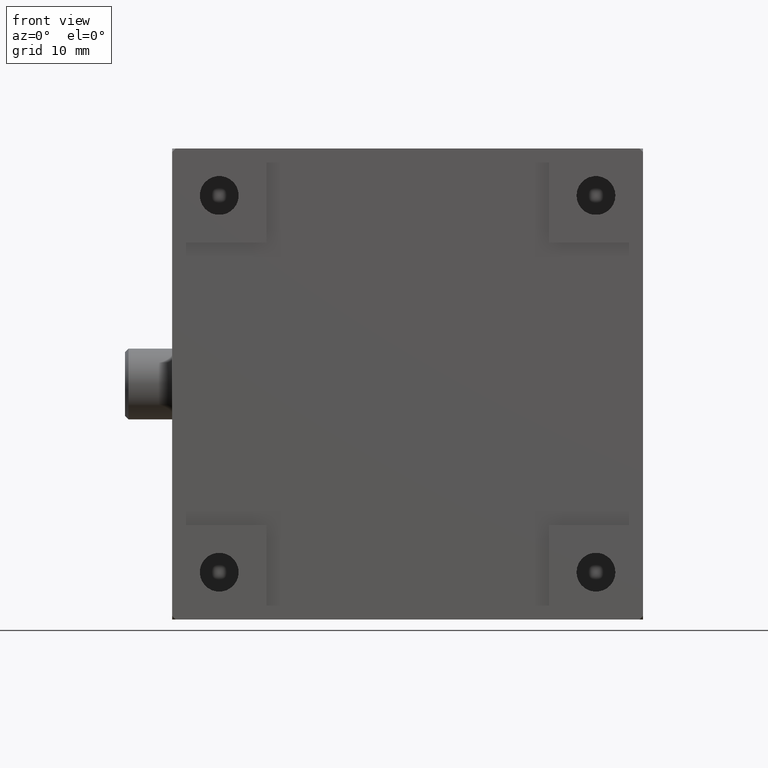
[diagram: clean part render]
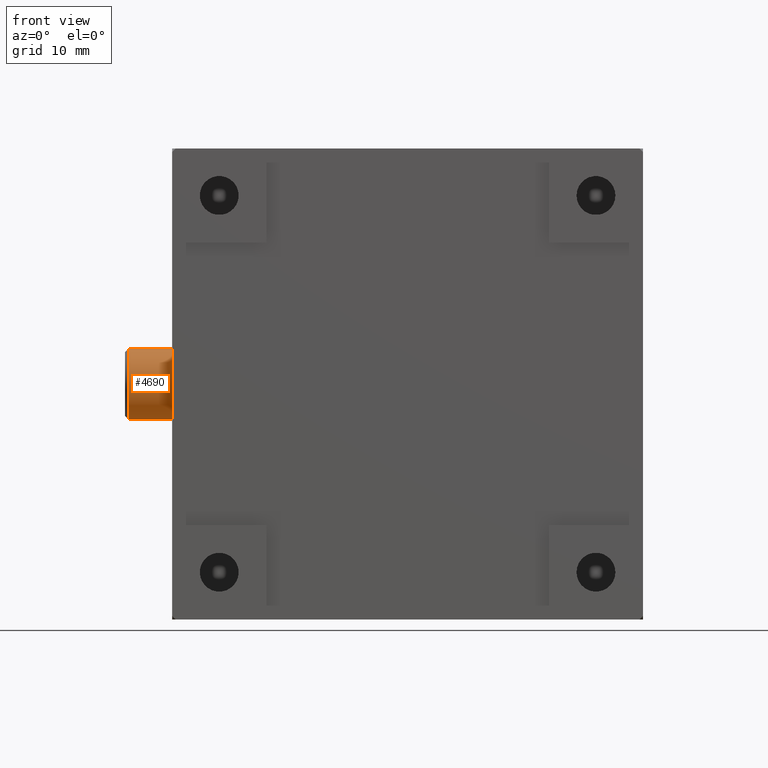
[diagram: same view with one face highlighted and labeled with its STEP entity id]
A machine part, front view. The second image highlights one B-rep face of the part: STEP entity #4690.
In plain terms, the highlighted cylindrical surface (bore or boss wall) has radius 3 mm, axis along (-1, -0, 0).
Its self-contained STEP definition (entity closure, byte-faithful):
#186 = EDGE_CURVE ( 'NONE', #3825, #3825, #3553, .T. ) ;
#351 = DIRECTION ( 'NONE',  ( -1.000000000000000000, -0.000000000000000000, 2.081668171172170054E-17 ) ) ;
#519 = DIRECTION ( 'NONE',  ( 0.000000000000000000, 0.000000000000000000, -1.000000000000000000 ) ) ;
#527 = CARTESIAN_POINT ( 'NONE',  ( -3.699999999999988187, 8.800000000000000711, 17.00000000000006040 ) ) ;
#570 = ORIENTED_EDGE ( 'NONE', *, *, #4188, .T. ) ;
#949 = AXIS2_PLACEMENT_3D ( 'NONE', #4480, #3678, #3239 ) ;
#1129 = CYLINDRICAL_SURFACE ( 'NONE', #3181, 2.999999999999940048 ) ;
#1142 = EDGE_LOOP ( 'NONE', ( #2640 ) ) ;
#1149 = AXIS2_PLACEMENT_3D ( 'NONE', #2696, #351, #1975 ) ;
#1521 = FACE_OUTER_BOUND ( 'NONE', #1142, .T. ) ;
#1975 = DIRECTION ( 'NONE',  ( -2.081668171172170362E-17, 0.000000000000000000, -1.000000000000000000 ) ) ;
#2284 = CIRCLE ( 'NONE', #949, 2.999999999999940048 ) ;
#2640 = ORIENTED_EDGE ( 'NONE', *, *, #186, .T. ) ;
#2696 = CARTESIAN_POINT ( 'NONE',  ( 0.000000000000000000, 8.800000000000000711, 20.00000000000000000 ) ) ;
#3181 = AXIS2_PLACEMENT_3D ( 'NONE', #4409, #4065, #519 ) ;
#3239 = DIRECTION ( 'NONE',  ( 0.000000000000000000, 0.000000000000000000, -1.000000000000000000 ) ) ;
#3273 = EDGE_LOOP ( 'NONE', ( #570 ) ) ;
#3553 = CIRCLE ( 'NONE', #1149, 2.999999999999940048 ) ;
#3625 = VERTEX_POINT ( 'NONE', #527 ) ;
#3678 = DIRECTION ( 'NONE',  ( 1.000000000000000000, 0.000000000000000000, -2.081668171172170054E-17 ) ) ;
#3825 = VERTEX_POINT ( 'NONE', #5028 ) ;
#4065 = DIRECTION ( 'NONE',  ( -1.000000000000000000, -0.000000000000000000, 2.081668171172170054E-17 ) ) ;
#4188 = EDGE_CURVE ( 'NONE', #3625, #3625, #2284, .T. ) ;
#4409 = CARTESIAN_POINT ( 'NONE',  ( -4.000000000000000000, 8.800000000000000711, 20.00000000000000000 ) ) ;
#4480 = CARTESIAN_POINT ( 'NONE',  ( -3.699999999999988187, 8.800000000000000711, 20.00000000000000000 ) ) ;
#4682 = FACE_OUTER_BOUND ( 'NONE', #3273, .T. ) ;
#4690 = ADVANCED_FACE ( 'NONE', ( #1521, #4682 ), #1129, .T. ) ;
#5028 = CARTESIAN_POINT ( 'NONE',  ( -6.245004513516385978E-17, 8.800000000000000711, 17.00000000000006040 ) ) ;